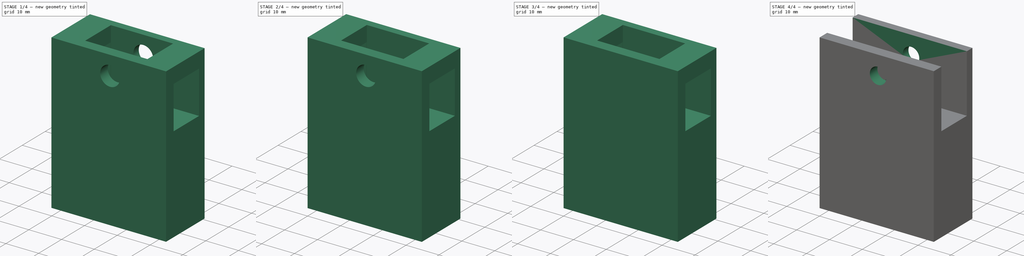
[diagram: build sequence overview — one tinted view per stage of 4, left to right]
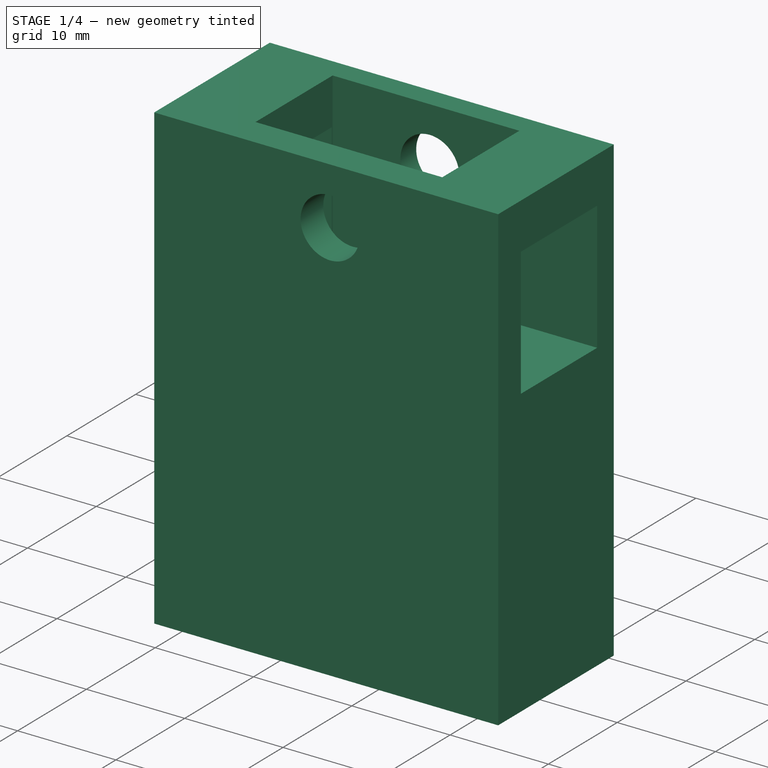
[diagram: stage 1 of 4 — iso view after this stage's code; geometry added in this stage tinted green]
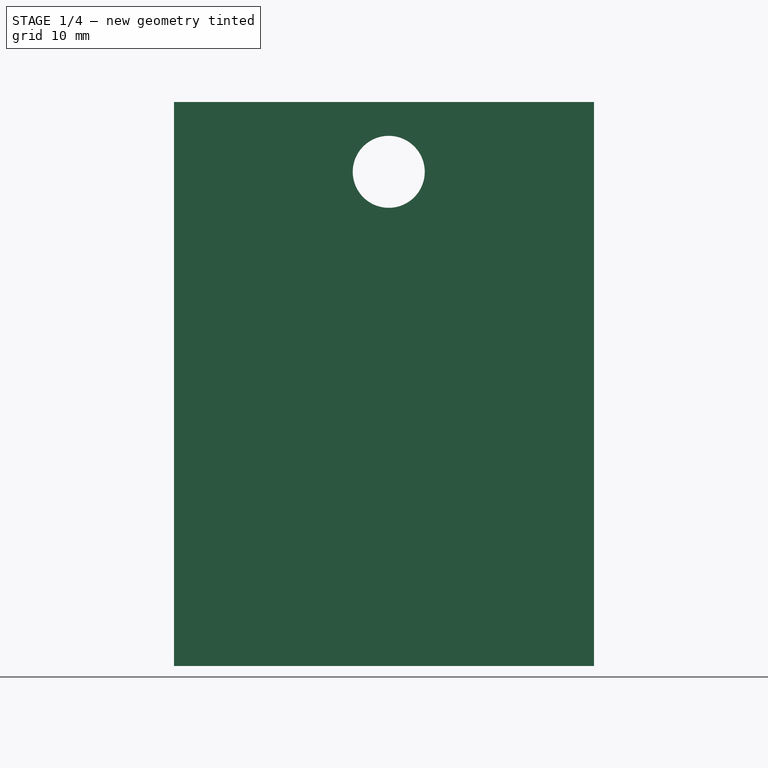
[diagram: stage 1 of 4 — front view after this stage's code; geometry added in this stage tinted green]
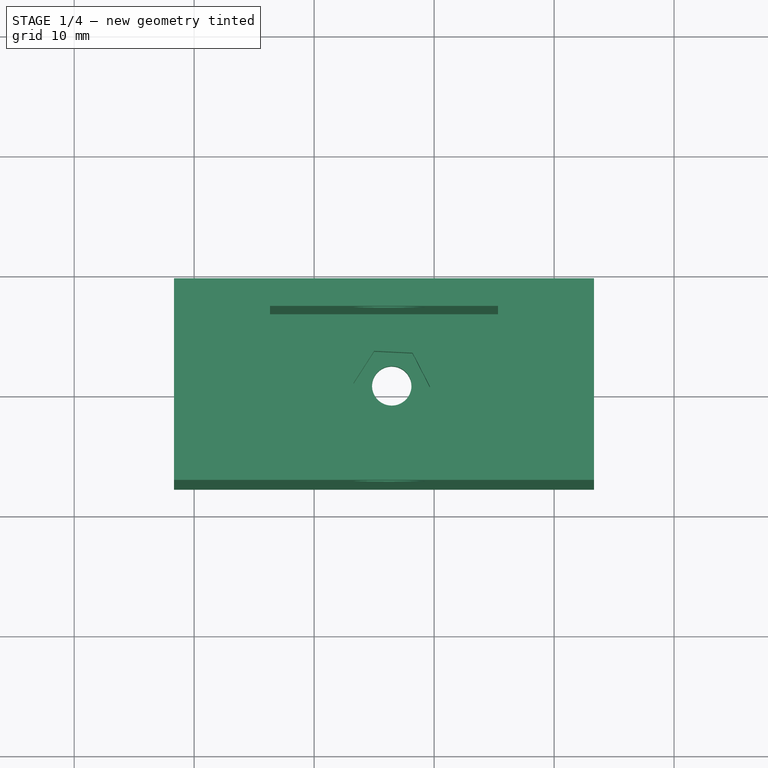
[diagram: stage 1 of 4 — top view after this stage's code; geometry added in this stage tinted green]
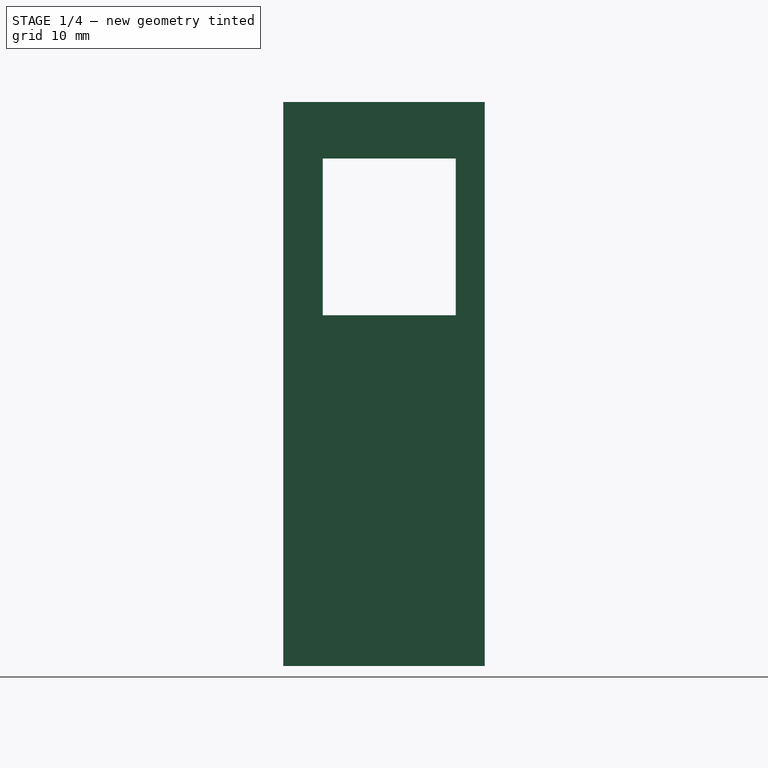
[diagram: stage 1 of 4 — right view after this stage's code; geometry added in this stage tinted green]
FCSTD DOCUMENT  (FreeCAD 2024.2R37179 (Git))
Label: sliding_body
License: All rights reserved
LicenseURL: http://en.wikipedia.org/wiki/All_rights_reserved
objects: PartDesign::Pocket×7, Sketcher::SketchObject×3, PartDesign::Pad×3, Part::Feature×1, PartDesign::FeatureBase×1, PartDesign::Body×1
note: 26 computed .brp shape members not serialized (recipe doc carries the construction recipe); baked Part::Feature solids carry a one-line shape summary decoded from their .brp

FEATURE [Part::Feature] Pocket038
  Placement = pos=(0,0,0) rot=(1,0,0;1.5708rad)
  shape: bbox 35 x 47 x 17 mm, 27 faces (baked)
FEATURE [PartDesign::FeatureBase] BaseFeature
  BaseFeature = -> Pocket038
  Suppressed = false
FEATURE [PartDesign::Pocket] Pocket
  BaseFeature = -> BaseFeature
  Direction = (0,1,-3e-16)
  Length = 0.1
  Length2 = 5
  Profile = -> BaseFeature [Face3]
  Suppressed = false
  Type = 0
FEATURE [PartDesign::Pocket] Pocket039
  BaseFeature = -> Pocket
  Direction = (0,-1,3e-16)
  Length = 0.1
  Length2 = 5
  Profile = -> Pocket [Face5]
  Suppressed = false
  Type = 0
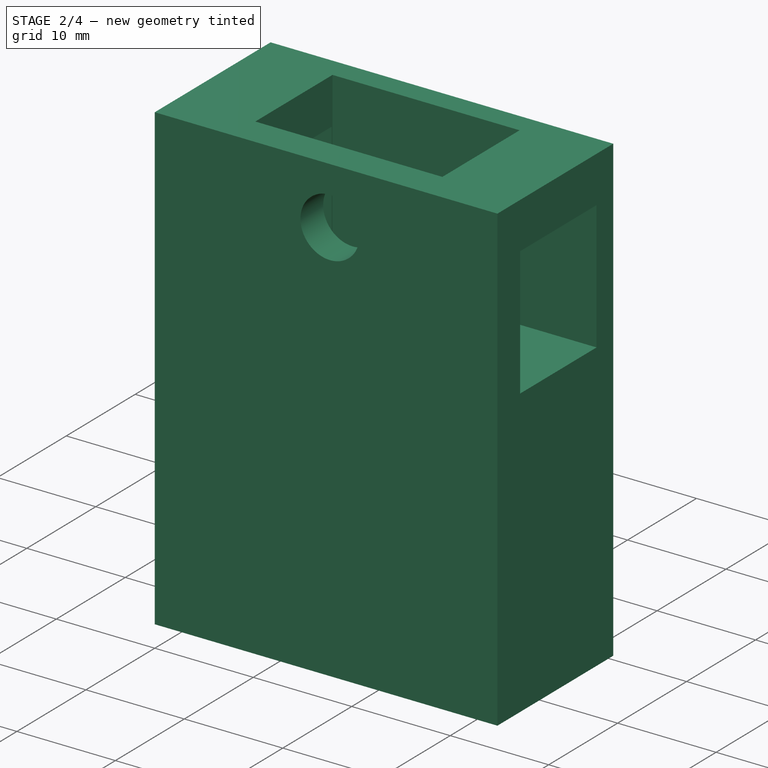
[diagram: stage 2 of 4 — iso view after this stage's code; geometry added in this stage tinted green]
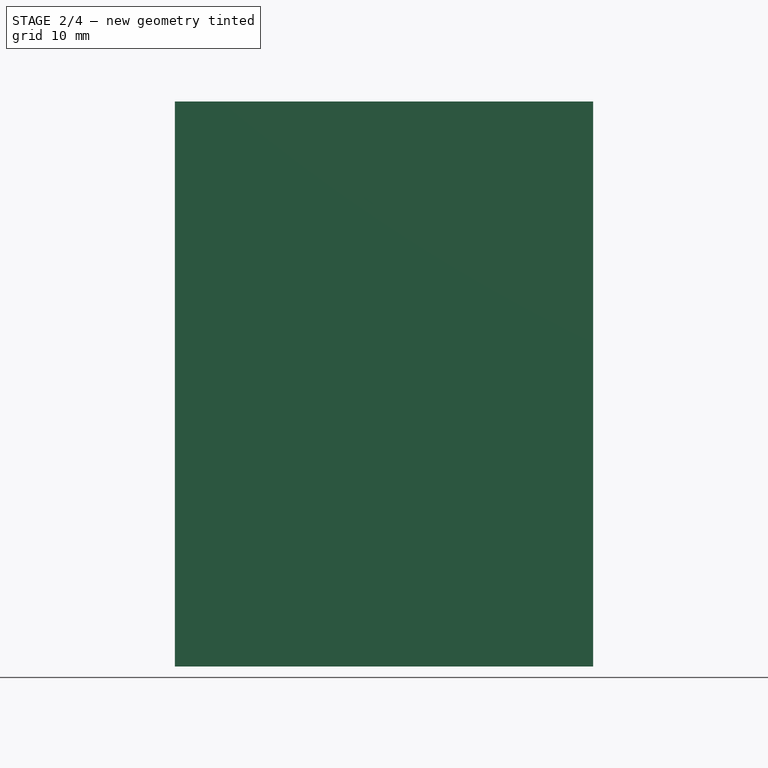
[diagram: stage 2 of 4 — front view after this stage's code; geometry added in this stage tinted green]
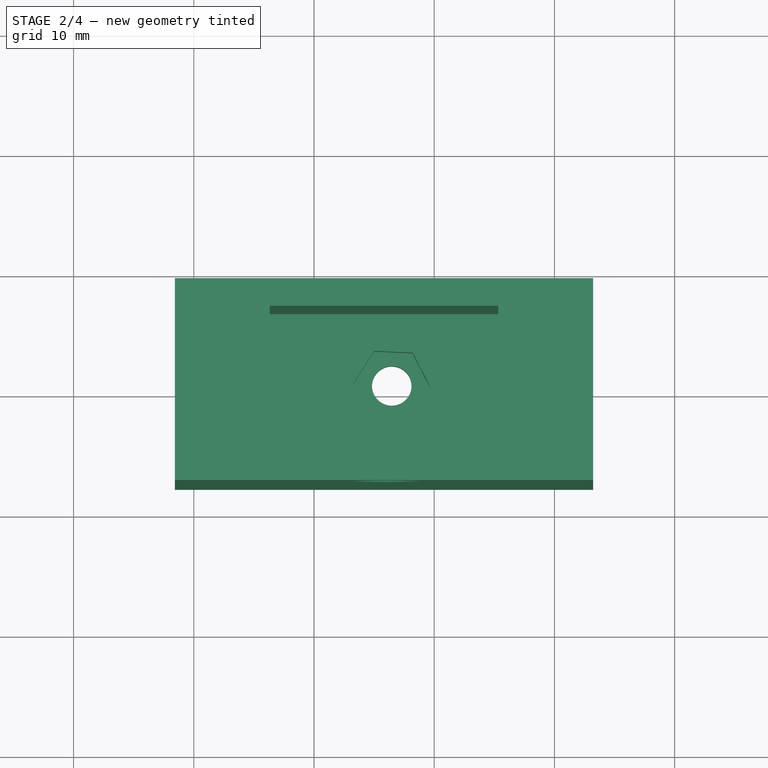
[diagram: stage 2 of 4 — top view after this stage's code; geometry added in this stage tinted green]
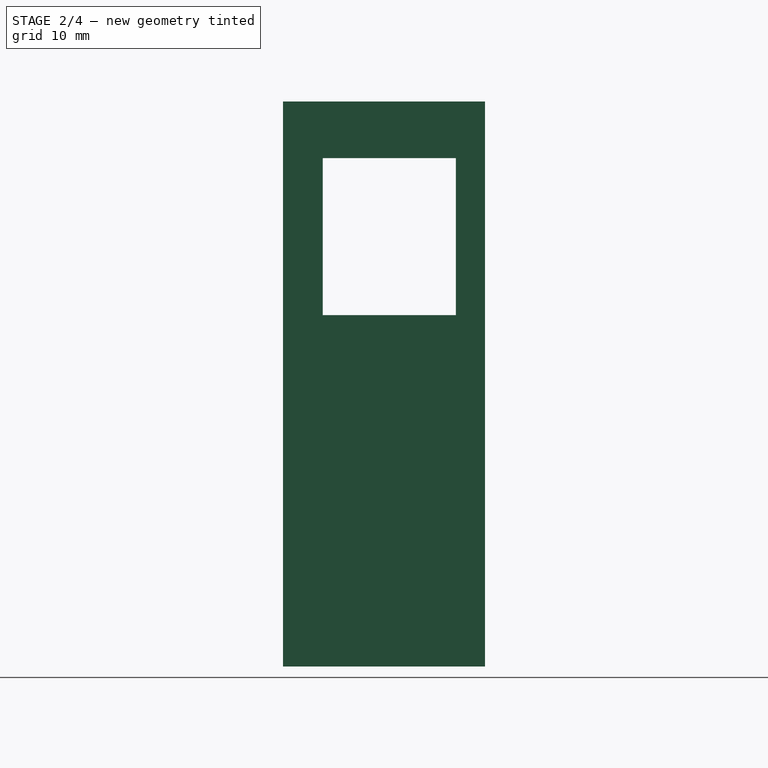
[diagram: stage 2 of 4 — right view after this stage's code; geometry added in this stage tinted green]
FEATURE [PartDesign::Pocket] Pocket040
  BaseFeature = -> Pocket039
  Direction = (-1,0,0)
  Length = 0.1
  Length2 = 5
  Profile = -> Pocket039 [Face10]
  Suppressed = false
  Type = 0
FEATURE [PartDesign::Pocket] Pocket041
  BaseFeature = -> Pocket040
  Direction = (1,0,0)
  Length = 0.1
  Length2 = 5
  Profile = -> Pocket040 [Face1]
  Suppressed = false
  Type = 0
FEATURE [Sketcher::SketchObject] Sketch
  AttachmentSupport = -> [Pocket041]
  FullyConstrained = false
  MapMode = 5
  Placement = pos=(0,-200.953,6.83e-14) rot=(0,0.707107,0.707107;3.14159rad)
  sketch-geometry (1):
    g0: Circle CenterX=-506.229 CenterY=-5.81687 CenterZ=0 NormalX=0 NormalY=0 NormalZ=1 AngleXU=0 Radius=2.5
  constraints (1):
    c: Diameter(g0) = 5
FEATURE [Sketcher::SketchObject] Sketch001
  AttachmentSupport = -> [Pocket041]
  FullyConstrained = false
  MapMode = 5
  Placement = pos=(0,-200.953,6.83e-14) rot=(0,0.707107,0.707107;3.14159rad)
  sketch-geometry (4):
    g0: LineSegment StartX=-510.72 StartY=-1.08625 StartZ=0 EndX=-510.72 EndY=-9.84771 EndZ=0
    g1: LineSegment StartX=-510.72 StartY=-9.84771 StartZ=0 EndX=-501.442 EndY=-9.84771 EndZ=0
    g2: LineSegment StartX=-501.442 StartY=-9.84771 StartZ=0 EndX=-501.442 EndY=-1.08625 EndZ=0
    g3: LineSegment StartX=-501.442 StartY=-1.08625 StartZ=0 EndX=-510.72 EndY=-1.08625 EndZ=0
  constraints (8):
    c: Coincident(g0,g1)
    c: Coincident(g1,g2)
    c: Coincident(g2,g3)
    c: Coincident(g3,g0)
    c: Vertical(g0)
    c: Vertical(g2)
    c: Horizontal(g1)
    c: Horizontal(g3)
FEATURE [PartDesign::Pad] Pad
  BaseFeature = -> Pocket041
  Direction = (0,1,-2e-16)
  Length = 10
  Length2 = 10
  Profile = -> Sketch001
  ReferenceAxis = -> Sketch001 [N_Axis]
  Refine = true
  Reversed = true
  Suppressed = false
  Type = 3
  UpToFace = -> Pocket041 [Face7]
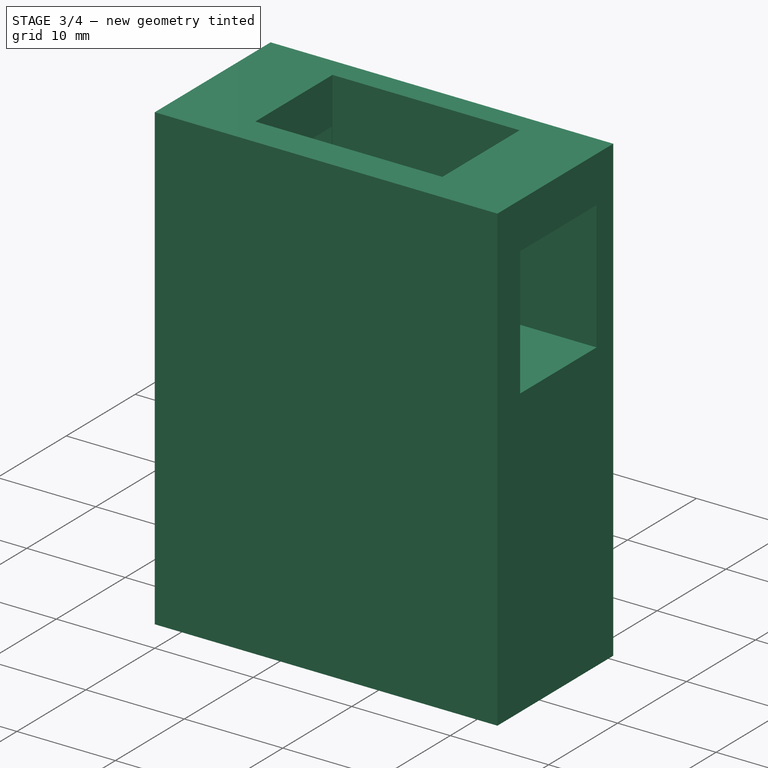
[diagram: stage 3 of 4 — iso view after this stage's code; geometry added in this stage tinted green]
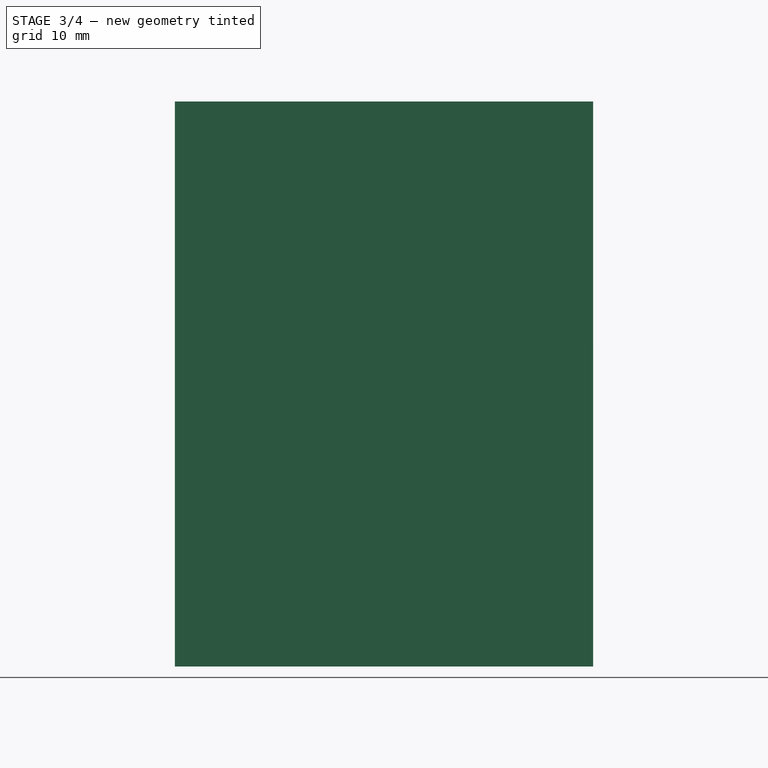
[diagram: stage 3 of 4 — front view after this stage's code; geometry added in this stage tinted green]
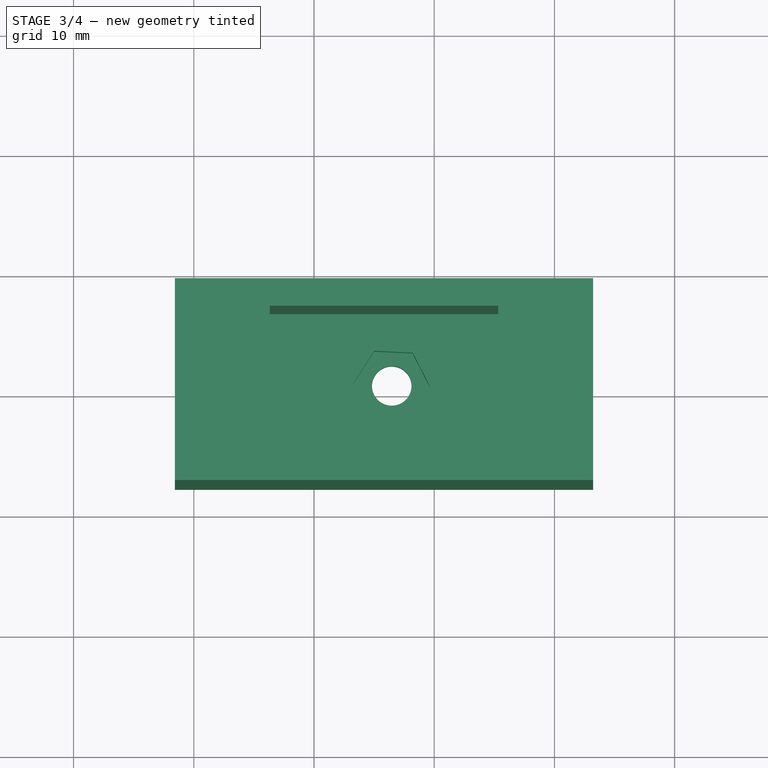
[diagram: stage 3 of 4 — top view after this stage's code; geometry added in this stage tinted green]
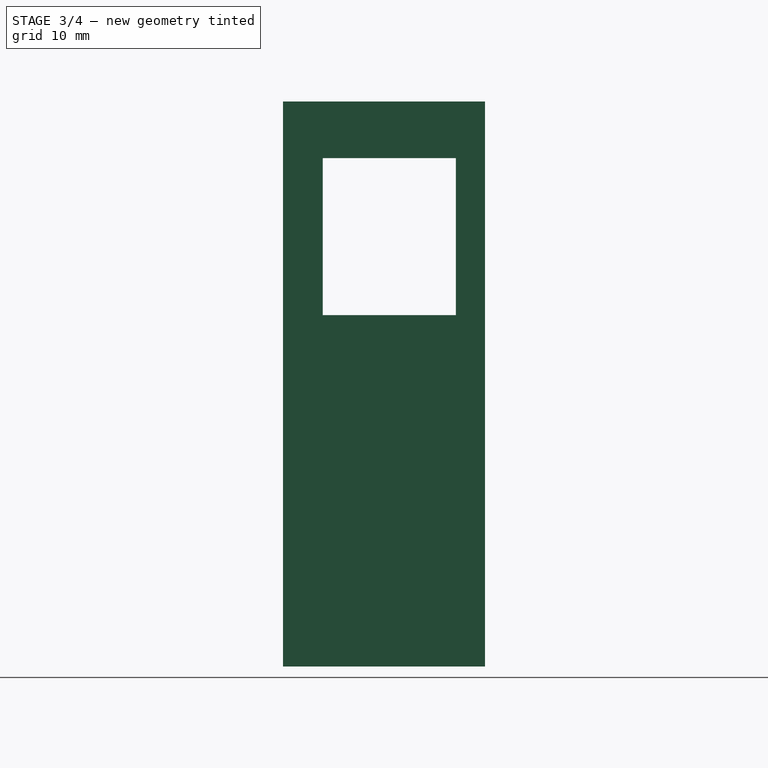
[diagram: stage 3 of 4 — right view after this stage's code; geometry added in this stage tinted green]
FEATURE [Sketcher::SketchObject] Sketch002
  AttachmentSupport = -> [Pad]
  FullyConstrained = false
  MapMode = 5
  Placement = pos=(0,-217.753,7.4e-14) rot=(1,0,0;1.5708rad)
  sketch-geometry (4):
    g0: LineSegment StartX=501.748 StartY=-1.84851 StartZ=0 EndX=501.748 EndY=-10.2234 EndZ=0
    g1: LineSegment StartX=501.748 StartY=-10.2234 StartZ=0 EndX=510.348 EndY=-10.2234 EndZ=0
    g2: LineSegment StartX=510.348 StartY=-10.2234 StartZ=0 EndX=510.348 EndY=-1.84851 EndZ=0
    g3: LineSegment StartX=510.348 StartY=-1.84851 StartZ=0 EndX=501.748 EndY=-1.84851 EndZ=0
  constraints (8):
    c: Coincident(g0,g1)
    c: Coincident(g1,g2)
    c: Coincident(g2,g3)
    c: Coincident(g3,g0)
    c: Vertical(g0)
    c: Vertical(g2)
    c: Horizontal(g1)
    c: Horizontal(g3)
FEATURE [PartDesign::Pad] Pad001
  BaseFeature = -> Pad
  Direction = (0,-1,2e-16)
  Length = 10
  Length2 = 10
  Profile = -> Sketch002
  ReferenceAxis = -> Sketch002 [N_Axis]
  Refine = true
  Reversed = true
  Suppressed = false
  Type = 3
  UpToFace = -> Pad [Face6]
FEATURE [PartDesign::Pocket] Pocket042
  BaseFeature = -> Pad001
  Direction = (0,-2e-16,-1)
  Length = 10
  Length2 = 5
  Profile = -> Pad001 [Face18]
  Refine = true
  Suppressed = false
  Type = 0
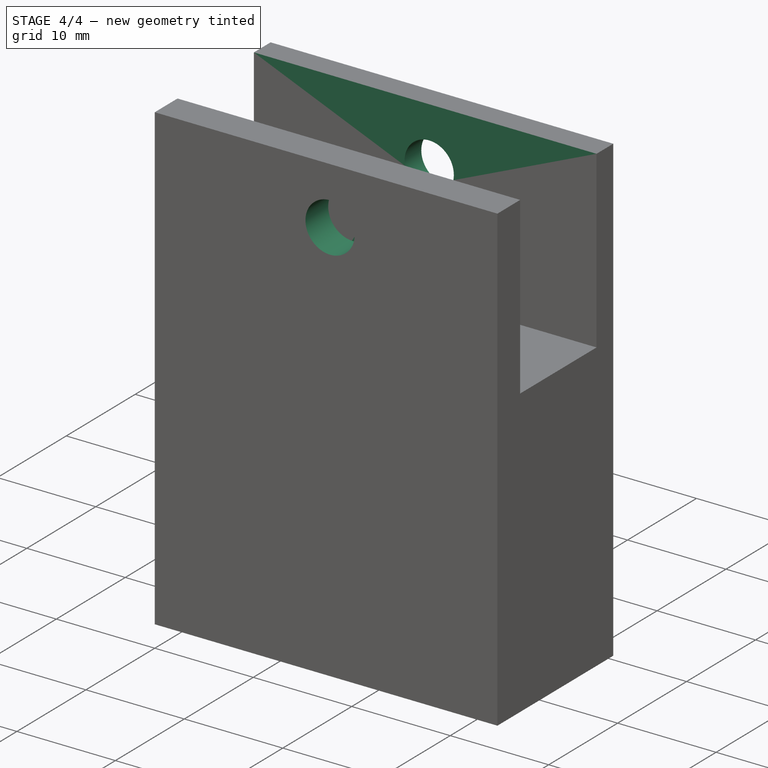
[diagram: stage 4 of 4 — iso view after this stage's code; geometry added in this stage tinted green]
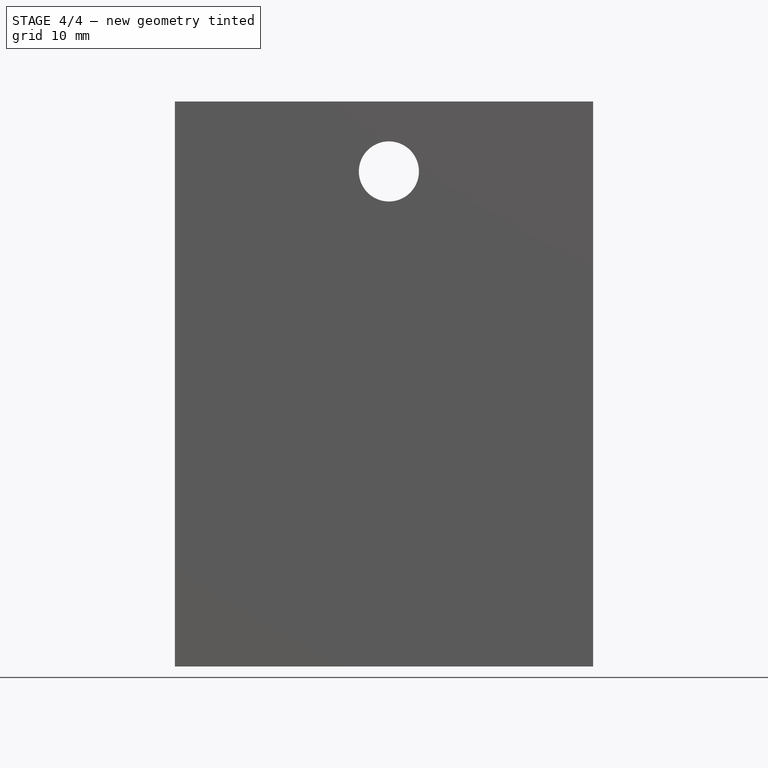
[diagram: stage 4 of 4 — front view after this stage's code; geometry added in this stage tinted green]
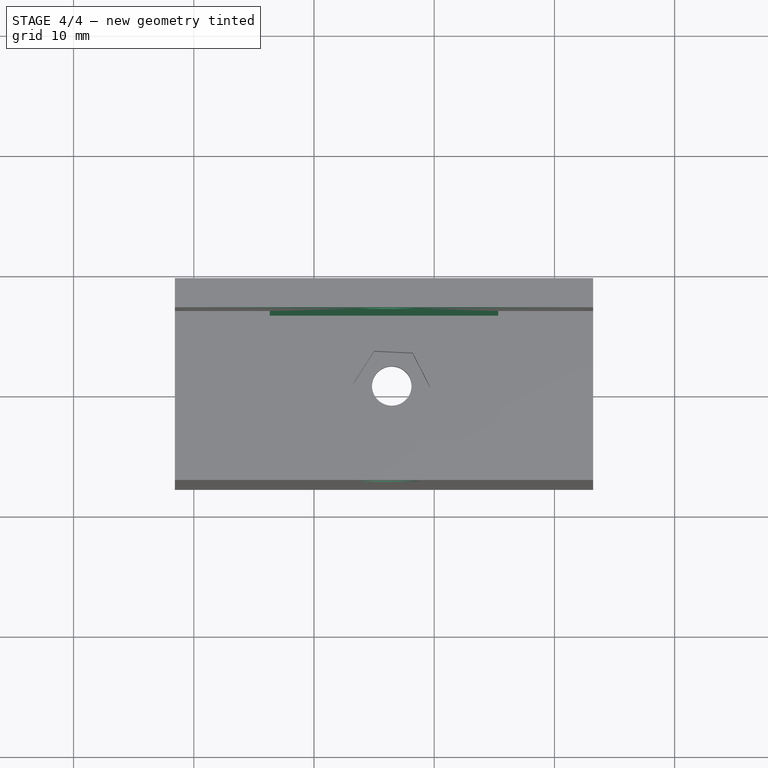
[diagram: stage 4 of 4 — top view after this stage's code; geometry added in this stage tinted green]
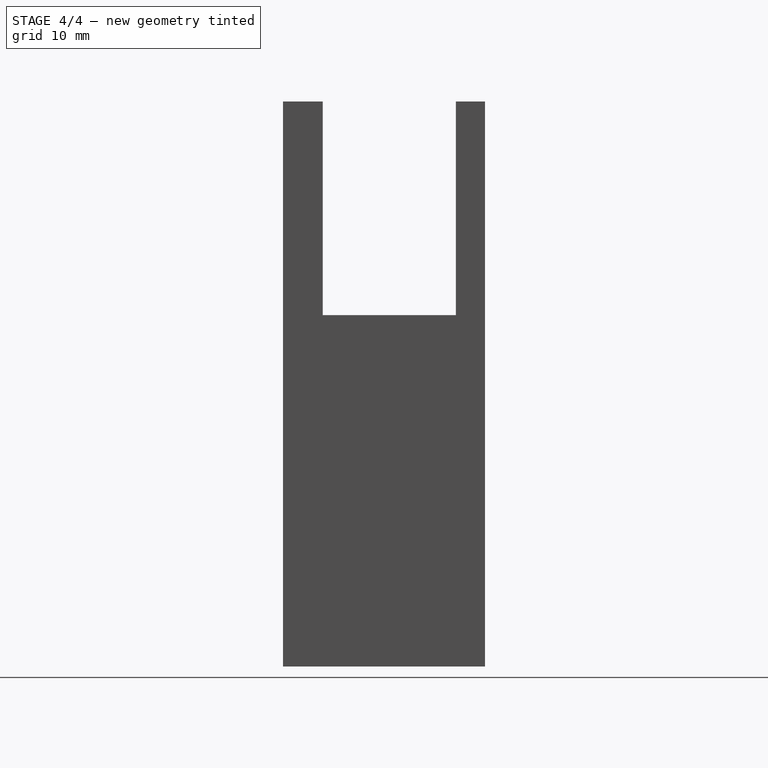
[diagram: stage 4 of 4 — right view after this stage's code; geometry added in this stage tinted green]
FEATURE [PartDesign::Pocket] Pocket043
  BaseFeature = -> Pocket042
  Direction = (0,-1,2e-16)
  Length = 23
  Length2 = 5
  Profile = -> Sketch
  ReferenceAxis = -> Sketch [N_Axis]
  Refine = true
  Suppressed = false
  Type = 0
FEATURE [PartDesign::Pocket] Pocket044
  BaseFeature = -> Pocket043
  Direction = (0,2e-16,1)
  Length = 5
  Length2 = 5
  Profile = -> Pocket043 [Face13,Face18]
  Refine = true
  Suppressed = false
  Type = 0
FEATURE [PartDesign::Pad] Pad002
  BaseFeature = -> Pocket044
  Direction = (0,-1,4e-16)
  Length = 10
  Length2 = 10
  Profile = -> Pocket044 [Face15]
  Refine = true
  Suppressed = false
  Type = 3
  UpToFace = -> Pocket044 [Face26]
FEATURE [PartDesign::Body] Body
  BaseFeature = -> Pocket038
  Group = -> [BaseFeature,Pocket,Pocket039,Pocket040,Pocket041,Sketch,Sketch001,Pad,Sketch002,Pad001,Pocket042,Pocket043,Pocket044,Pad002]
  Origin = -> Origin
  Tip = -> Pad002
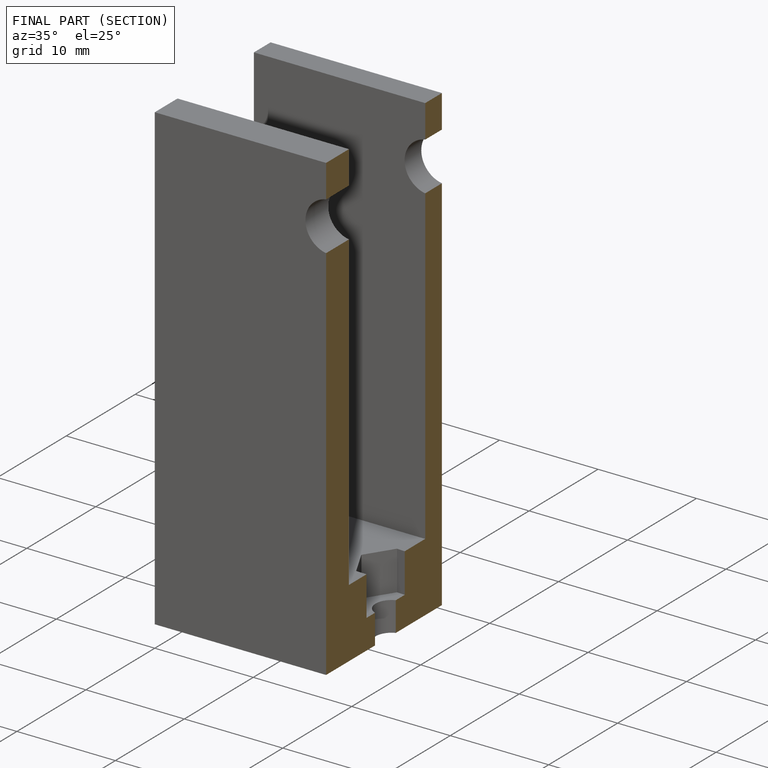
[diagram: finished part — half-section view (interior)]
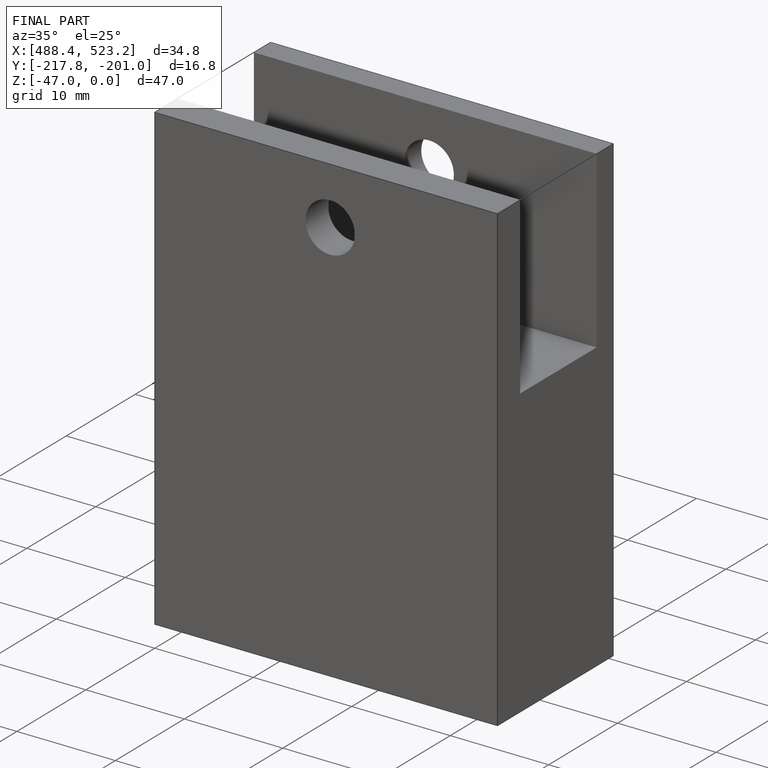
[diagram: finished part — iso view with bounding-box wireframe]
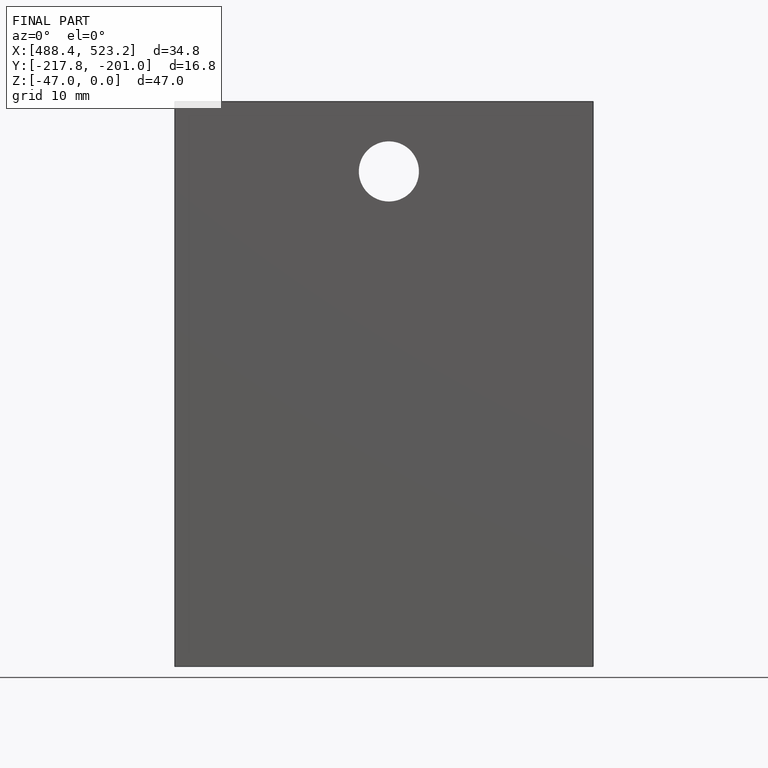
[diagram: finished part — front view with bounding-box wireframe]
